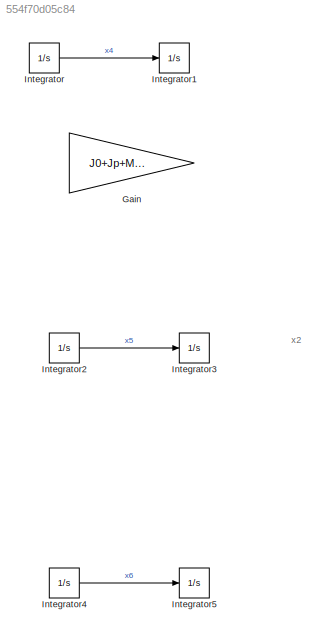
MODEL slx_554f70d05c84
KIND model
CONFIG PreLoadFcn = trajectory_control_of_non_linear_flexible_arm
BLOCK [Gain] Gain
  Gain = J0+Jp+ML*l^2+I0
  OutDataTypeStr = Inherit: Inherit via internal rule
  ParamDataTypeStr = Inherit: Inherit via internal rule
  SaturateOnIntegerOverflow = off
BLOCK [Integrator] Integrator
  Ports = [1, 1]
BLOCK [Integrator] Integrator1
  Ports = [1, 1]
BLOCK [Integrator] Integrator2
  Ports = [1, 1]
BLOCK [Integrator] Integrator3
  Ports = [1, 1]
BLOCK [Integrator] Integrator4
  Ports = [1, 1]
BLOCK [Integrator] Integrator5
  Ports = [1, 1]
ANNOTATION (root): x2
LINE Integrator2:1 -> Integrator3:1
LINE Integrator4:1 -> Integrator5:1
LINE Integrator:1 -> Integrator1:1
